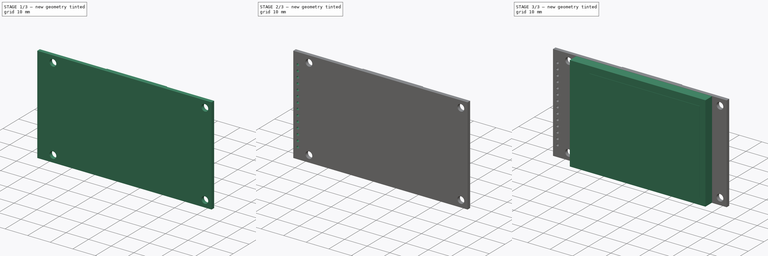
[diagram: build sequence overview — one tinted view per stage of 3, left to right]
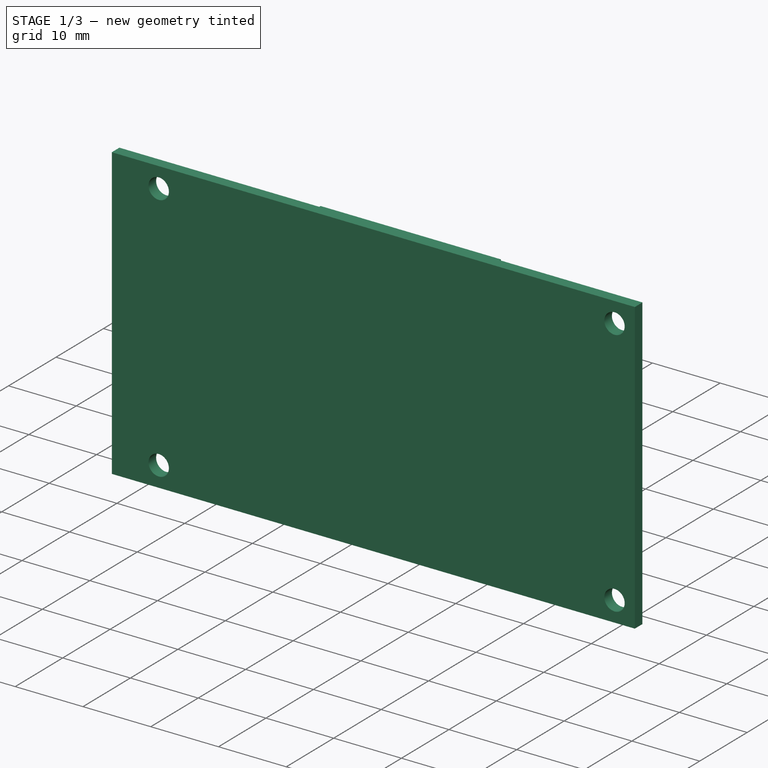
[diagram: stage 1 of 3 — iso view after this stage's code; geometry added in this stage tinted green]
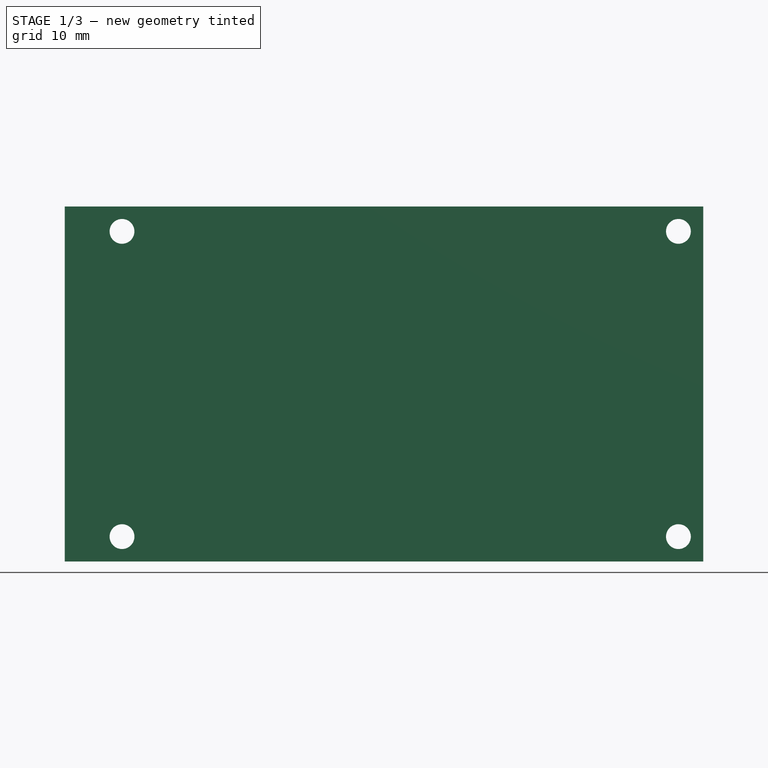
[diagram: stage 1 of 3 — front view after this stage's code; geometry added in this stage tinted green]
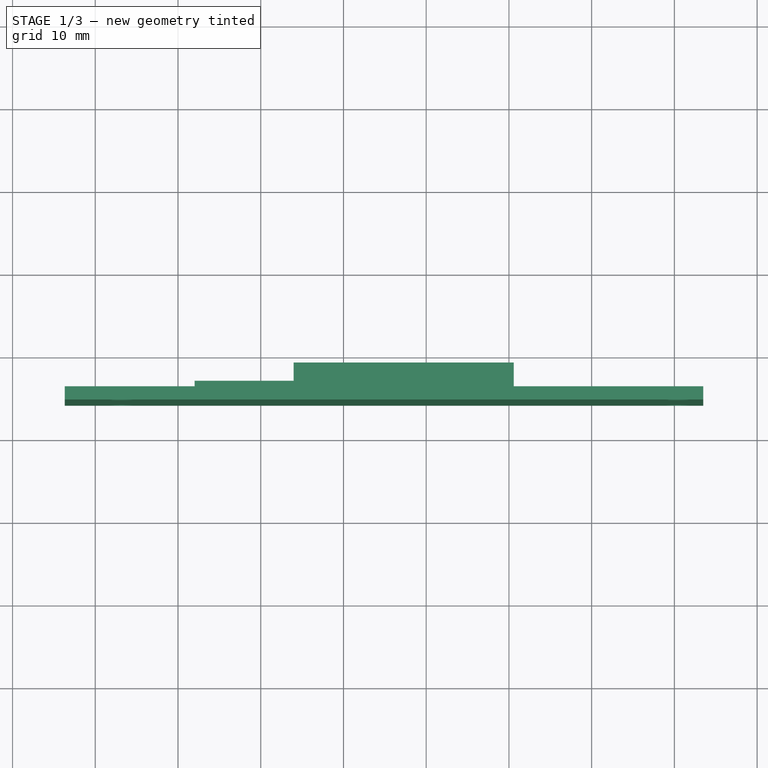
[diagram: stage 1 of 3 — top view after this stage's code; geometry added in this stage tinted green]
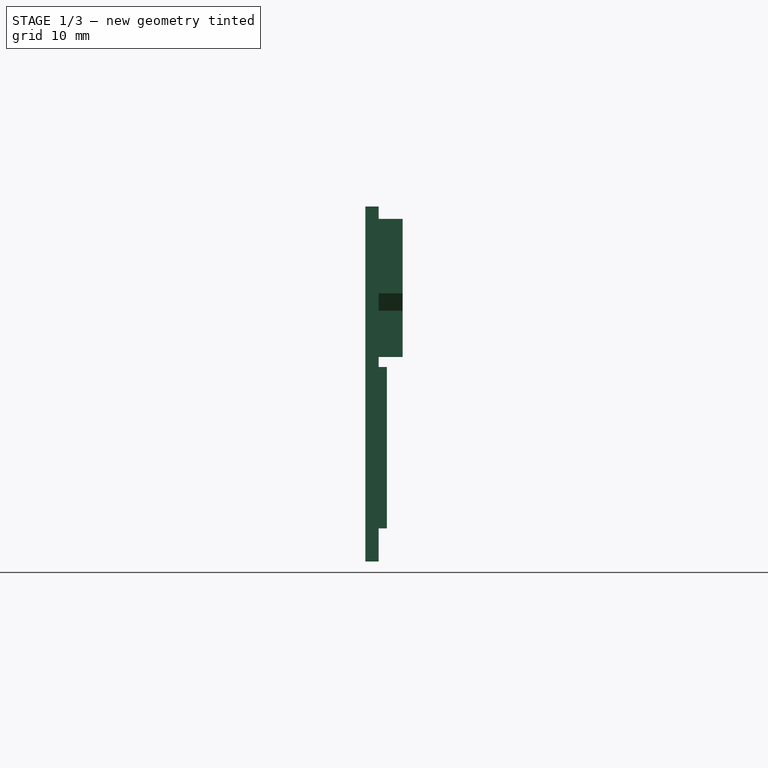
[diagram: stage 1 of 3 — right view after this stage's code; geometry added in this stage tinted green]
FCSTD DOCUMENT  (FreeCAD 0.19R24276 (Git))
Label: Display 2.4'' 320x240
License: All rights reserved
LicenseURL: http://en.wikipedia.org/wiki/All_rights_reserved
objects: Sketcher::SketchObject×9, PartDesign::Pad×5, PartDesign::Body×4, PartDesign::Pocket×1, PartDesign::LinearPattern×1, Part::Compound×1
note: 27 computed .brp shape members not serialized (recipe doc carries the construction recipe); baked Part::Feature solids carry a one-line shape summary decoded from their .brp

FEATURE [PartDesign::Body] Body  label="Glass"
  Group = -> [Sketch,Pad,Sketch001,Pad001]
  Origin = -> Origin
  Tip = -> Pad001
FEATURE [Sketcher::SketchObject] Sketch003  label="pc skeleton"
  FullyConstrained = true
  MapMode = 5
  Placement = pos=(0,0,0) rot=(1,0,0;1.5708rad)
  Support = -> [XZ_Plane001]
  sketch-geometry (8):
    g0: LineSegment StartX=-33.28 StartY=21.36 StartZ=0 EndX=26.98 EndY=21.36 EndZ=0
    g1: LineSegment StartX=26.98 StartY=21.36 StartZ=0 EndX=26.98 EndY=-21.36 EndZ=0
    g2: LineSegment StartX=26.98 StartY=-21.36 StartZ=0 EndX=-33.28 EndY=-21.36 EndZ=0
    g3: LineSegment StartX=-33.28 StartY=-21.36 StartZ=0 EndX=-33.28 EndY=21.36 EndZ=0
    g4: LineSegment StartX=-24.48 StartY=18.36 StartZ=0 EndX=24.48 EndY=18.36 EndZ=0
    g5: LineSegment StartX=24.48 StartY=18.36 StartZ=0 EndX=24.48 EndY=-18.36 EndZ=0
    g6: LineSegment StartX=24.48 StartY=-18.36 StartZ=0 EndX=-24.48 EndY=-18.36 EndZ=0
    g7: LineSegment StartX=-24.48 StartY=-18.36 StartZ=0 EndX=-24.48 EndY=18.36 EndZ=0
  constraints (21):
    c: Coincident(g0,g1)
    c: Coincident(g1,g2)
    c: Coincident(g2,g3)
    c: Coincident(g3,g0)
    c: Horizontal(g2)
    c: Vertical(g3)
    c: DistanceX(g0,g0) = 60.26
    c: DistanceY(g1,g1) = 42.72
    c: Coincident(g4,g5)
    c: Coincident(g5,g6)
    c: Coincident(g6,g7)
    c: Coincident(g7,g4)
    c: Horizontal(g6)
    c: Vertical(g7)
    c: Horizontal(g0)
    c: Symmetric(g4,g4,g-2)
    c: Symmetric(g4,g5,g-1)
    c: DistanceX(g4,g4) = 48.96
    c: DistanceX(g4,g0) = 2.5
    c: DistanceY(g5,g5) = 36.72
    c: Symmetric(g0,g1,g-1)
FEATURE [Sketcher::SketchObject] Sketch002  label="pc base"
  AttachmentOffset = pos=(0,0,-4.2) rot=(0,0,1;0rad)
  ExternalGeometry = -> [Sketch003]
  FullyConstrained = true
  MapMode = 5
  Placement = pos=(0,4.2,9e-16) rot=(1,0,0;1.5708rad)
  Support = -> [XZ_Plane001]
  sketch-geometry (12):
    g0: LineSegment StartX=33.49 StartY=21.45 StartZ=0 EndX=-43.69 EndY=21.45 EndZ=0
    g1: LineSegment StartX=-43.69 StartY=21.45 StartZ=0 EndX=-43.69 EndY=-21.45 EndZ=0
    g2: LineSegment StartX=-43.69 StartY=-21.45 StartZ=0 EndX=33.49 EndY=-21.45 EndZ=0
    g3: LineSegment StartX=33.49 StartY=-21.45 StartZ=0 EndX=33.49 EndY=21.45 EndZ=0
    g4: LineSegment StartX=-36.77 StartY=18.45 StartZ=0 EndX=30.49 EndY=18.45 EndZ=0
    g5: LineSegment StartX=30.49 StartY=18.45 StartZ=0 EndX=30.49 EndY=-18.45 EndZ=0
    g6: LineSegment StartX=30.49 StartY=-18.45 StartZ=0 EndX=-36.77 EndY=-18.45 EndZ=0
    g7: LineSegment StartX=-36.77 StartY=-18.45 StartZ=0 EndX=-36.77 EndY=18.45 EndZ=0
    g8: Circle CenterX=30.49 CenterY=18.45 CenterZ=0 NormalX=0 NormalY=0 NormalZ=1 AngleXU=0 Radius=1.5
    g9: Circle CenterX=30.49 CenterY=-18.45 CenterZ=0 NormalX=0 NormalY=0 NormalZ=1 AngleXU=0 Radius=1.5
    g10: Circle CenterX=-36.77 CenterY=-18.45 CenterZ=0 NormalX=0 NormalY=0 NormalZ=1 AngleXU=0 Radius=1.5
    g11: Circle CenterX=-36.77 CenterY=18.45 CenterZ=0 NormalX=0 NormalY=0 NormalZ=1 AngleXU=0 Radius=1.5
  constraints (30):
    c: Coincident(g0,g1)
    c: Coincident(g1,g2)
    c: Coincident(g2,g3)
    c: Coincident(g3,g0)
    c: Horizontal(g0)
    c: Horizontal(g2)
    c: Vertical(g1)
    c: Symmetric(g0,g2,g-1)
    c: DistanceX(g0,g-3) = 10.41
    c: DistanceX(g0,g0) = 77.18
    c: DistanceY(g3,g3) = 42.9
    c: Coincident(g4,g5)
    c: Coincident(g5,g6)
    c: Coincident(g6,g7)
    c: Coincident(g7,g4)
    c: Horizontal(g4)
    c: Horizontal(g6)
    c: Vertical(g7)
    c: Symmetric(g4,g5,g-1)
    c: Coincident(g8,g4)
    c: Coincident(g9,g5)
    c: Coincident(g10,g6)
    c: Coincident(g11,g4)
    c: Equal(g8,g11)
    c: Equal(g11,g10)
    c: Equal(g10,g9)
    c: Radius(g9) = 1.5
    c: DistanceX(g0,g11) = 6.92
    c: DistanceX(g8,g0) = 3
    c: DistanceY(g8,g0) = 3
FEATURE [PartDesign::Pad] Pad002  label="PC base"
  Direction = (1,1,1)
  Length = 1.6
  Length2 = 100
  Placement = pos=(0,0,0) rot=(1,0,0;1.5708rad)
  Profile = -> Sketch002
  Reversed = true
  Type = 0
FEATURE [PartDesign::Body] Body001  label="PCB"
  Group = -> [Sketch002,Sketch003,Pad002,Sketch004,Pocket,LinearPattern]
  Origin = -> Origin001
  Tip = -> LinearPattern
FEATURE [Sketcher::SketchObject] Sketch006  label="sd skeleton"
  FullyConstrained = true
  MapMode = 5
  Placement = pos=(0,0,0) rot=(1,0,0;1.5708rad)
  Support = -> [XZ_Plane002]
  sketch-geometry (8):
    g0: LineSegment StartX=-33.28 StartY=21.36 StartZ=0 EndX=26.98 EndY=21.36 EndZ=0
    g1: LineSegment StartX=26.98 StartY=21.36 StartZ=0 EndX=26.98 EndY=-21.36 EndZ=0
    g2: LineSegment StartX=26.98 StartY=-21.36 StartZ=0 EndX=-33.28 EndY=-21.36 EndZ=0
    g3: LineSegment StartX=-33.28 StartY=-21.36 StartZ=0 EndX=-33.28 EndY=21.36 EndZ=0
    g4: LineSegment StartX=-24.48 StartY=18.36 StartZ=0 EndX=24.48 EndY=18.36 EndZ=0
    g5: LineSegment StartX=24.48 StartY=18.36 StartZ=0 EndX=24.48 EndY=-18.36 EndZ=0
    g6: LineSegment StartX=24.48 StartY=-18.36 StartZ=0 EndX=-24.48 EndY=-18.36 EndZ=0
    g7: LineSegment StartX=-24.48 StartY=-18.36 StartZ=0 EndX=-24.48 EndY=18.36 EndZ=0
  constraints (21):
    c: Coincident(g0,g1)
    c: Coincident(g1,g2)
    c: Coincident(g2,g3)
    c: Coincident(g3,g0)
    c: Horizontal(g2)
    c: Vertical(g3)
    c: DistanceX(g0,g0) = 60.26
    c: DistanceY(g1,g1) = 42.72
    c: Coincident(g4,g5)
    c: Coincident(g5,g6)
    c: Coincident(g6,g7)
    c: Coincident(g7,g4)
    c: Horizontal(g6)
    c: Vertical(g7)
    c: Horizontal(g0)
    c: Symmetric(g4,g4,g-2)
    c: Symmetric(g4,g5,g-1)
    c: DistanceX(g4,g4) = 48.96
    c: DistanceX(g4,g0) = 2.5
    c: DistanceY(g5,g5) = 36.72
    c: Symmetric(g0,g1,g-1)
FEATURE [Sketcher::SketchObject] Sketch005  label="sd base"
  AttachmentOffset = pos=(0,0,-5.8) rot=(0,0,1;0rad)
  ExternalGeometry = -> [Sketch006]
  FullyConstrained = true
  MapMode = 5
  Placement = pos=(0,5.8,1.3e-15) rot=(1,0,0;1.5708rad)
  Support = -> [XZ_Plane002]
  sketch-geometry (6):
    g0: LineSegment StartX=-16.02 StartY=19.96 StartZ=0 EndX=10.58 EndY=19.96 EndZ=0
    g1: LineSegment StartX=10.58 StartY=19.96 StartZ=0 EndX=10.58 EndY=10.96 EndZ=0
    g2: LineSegment StartX=8.48 StartY=3.26 StartZ=0 EndX=-16.02 EndY=3.26 EndZ=0
    g3: LineSegment StartX=-16.02 StartY=3.26 StartZ=0 EndX=-16.02 EndY=19.96 EndZ=0
    g4: LineSegment StartX=10.58 StartY=10.96 StartZ=0 EndX=8.48 EndY=8.86 EndZ=0
    g5: LineSegment StartX=8.48 StartY=8.86 StartZ=0 EndX=8.48 EndY=3.26 EndZ=0
  constraints (18):
    c: Coincident(g0,g1)
    c: Coincident(g2,g3)
    c: Coincident(g3,g0)
    c: Horizontal(g0)
    c: Horizontal(g2)
    c: Vertical(g1)
    c: Vertical(g3)
    c: DistanceX(g0,g-3) = 16.4
    c: DistanceX(g0,g0) = 26.6
    c: DistanceY(g0,g-3) = 1.4
    c: Coincident(g4,g5)
    c: Vertical(g5)
    c: Coincident(g2,g5)
    c: Coincident(g4,g1)
    c: DistanceY(g2,g0) = 16.7
    c: DistanceX(g2,g2) = 24.5
    c: DistanceY(g5,g5) = 5.6
    c: Angle(g5,g4) = 2.35619
FEATURE [PartDesign::Pad] Pad003  label="SD Base"
  Direction = (1,1,1)
  Length = 2.9
  Length2 = 100
  Placement = pos=(0,0,0) rot=(1,0,0;1.5708rad)
  Profile = -> Sketch005
  Reversed = true
  Type = 0
FEATURE [PartDesign::Body] Body002  label="SD Card Slot"
  Group = -> [Sketch005,Sketch006,Pad003]
  Origin = -> Origin002
  Tip = -> Pad003
FEATURE [Sketcher::SketchObject] Sketch009  label="cm skeleton"
  AttachmentOffset = pos=(0,0,-4.2) rot=(0,0,1;0rad)
  ExternalGeometry = -> [Sketch003]
  FullyConstrained = true
  MapMode = 5
  Placement = pos=(0,4.2,9e-16) rot=(1,0,0;1.5708rad)
  Support = -> [XZ_Plane003]
  sketch-geometry (12):
    g0: LineSegment StartX=33.49 StartY=21.45 StartZ=0 EndX=-43.69 EndY=21.45 EndZ=0
    g1: LineSegment StartX=-43.69 StartY=21.45 StartZ=0 EndX=-43.69 EndY=-21.45 EndZ=0
    g2: LineSegment StartX=-43.69 StartY=-21.45 StartZ=0 EndX=33.49 EndY=-21.45 EndZ=0
    g3: LineSegment StartX=33.49 StartY=-21.45 StartZ=0 EndX=33.49 EndY=21.45 EndZ=0
    g4: LineSegment StartX=-36.77 StartY=18.45 StartZ=0 EndX=30.49 EndY=18.45 EndZ=0
    g5: LineSegment StartX=30.49 StartY=18.45 StartZ=0 EndX=30.49 EndY=-18.45 EndZ=0
    g6: LineSegment StartX=30.49 StartY=-18.45 StartZ=0 EndX=-36.77 EndY=-18.45 EndZ=0
    g7: LineSegment StartX=-36.77 StartY=-18.45 StartZ=0 EndX=-36.77 EndY=18.45 EndZ=0
    g8: Circle CenterX=30.49 CenterY=18.45 CenterZ=0 NormalX=0 NormalY=0 NormalZ=1 AngleXU=0 Radius=1.5
    g9: Circle CenterX=30.49 CenterY=-18.45 CenterZ=0 NormalX=0 NormalY=0 NormalZ=1 AngleXU=0 Radius=1.5
    g10: Circle CenterX=-36.77 CenterY=-18.45 CenterZ=0 NormalX=0 NormalY=0 NormalZ=1 AngleXU=0 Radius=1.5
    g11: Circle CenterX=-36.77 CenterY=18.45 CenterZ=0 NormalX=0 NormalY=0 NormalZ=1 AngleXU=0 Radius=1.5
  constraints (30):
    c: Coincident(g0,g1)
    c: Coincident(g1,g2)
    c: Coincident(g2,g3)
    c: Coincident(g3,g0)
    c: Horizontal(g0)
    c: Horizontal(g2)
    c: Vertical(g1)
    c: Symmetric(g0,g2,g-1)
    c: DistanceX(g0,g-3) = 10.41
    c: DistanceX(g0,g0) = 77.18
    c: DistanceY(g3,g3) = 42.9
    c: Coincident(g4,g5)
    c: Coincident(g5,g6)
    c: Coincident(g6,g7)
    c: Coincident(g7,g4)
    c: Horizontal(g4)
    c: Horizontal(g6)
    c: Vertical(g7)
    c: Symmetric(g4,g5,g-1)
    c: Coincident(g8,g4)
    c: Coincident(g9,g5)
    c: Coincident(g10,g6)
    c: Coincident(g11,g4)
    c: Equal(g8,g11)
    c: Equal(g11,g10)
    c: Equal(g10,g9)
    c: Radius(g9) = 1.5
    c: DistanceX(g0,g11) = 6.92
    c: DistanceX(g8,g0) = 3
    c: DistanceY(g8,g0) = 3
FEATURE [Sketcher::SketchObject] Sketch010  label="cm components"
  AttachmentOffset = pos=(0,0,-5.8) rot=(0,0,1;0rad)
  ExternalGeometry = -> [Sketch009]
  FullyConstrained = true
  MapMode = 5
  Placement = pos=(0,5.8,1.3e-15) rot=(1,0,0;1.5708rad)
  Support = -> [XZ_Plane003]
  sketch-geometry (4):
    g0: LineSegment StartX=-27.99 StartY=2.05 StartZ=0 EndX=6.01 EndY=2.05 EndZ=0
    g1: LineSegment StartX=6.01 StartY=2.05 StartZ=0 EndX=6.01 EndY=-17.45 EndZ=0
    g2: LineSegment StartX=6.01 StartY=-17.45 StartZ=0 EndX=-27.99 EndY=-17.45 EndZ=0
    g3: LineSegment StartX=-27.99 StartY=-17.45 StartZ=0 EndX=-27.99 EndY=2.05 EndZ=0
  constraints (12):
    c: Coincident(g0,g1)
    c: Coincident(g1,g2)
    c: Coincident(g2,g3)
    c: Coincident(g3,g0)
    c: Horizontal(g0)
    c: Horizontal(g2)
    c: Vertical(g1)
    c: Vertical(g3)
    c: DistanceX(g-3,g2) = 15.7
    c: DistanceX(g0,g0) = 34
    c: DistanceY(g-3,g2) = 4
    c: DistanceY(g1,g1) = 19.5
FEATURE [PartDesign::Pad] Pad004
  Direction = (1,1,1)
  Length = 1
  Length2 = 100
  Placement = pos=(0,0,0) rot=(1,0,0;1.5708rad)
  Profile = -> Sketch010
  Reversed = true
  Type = 0
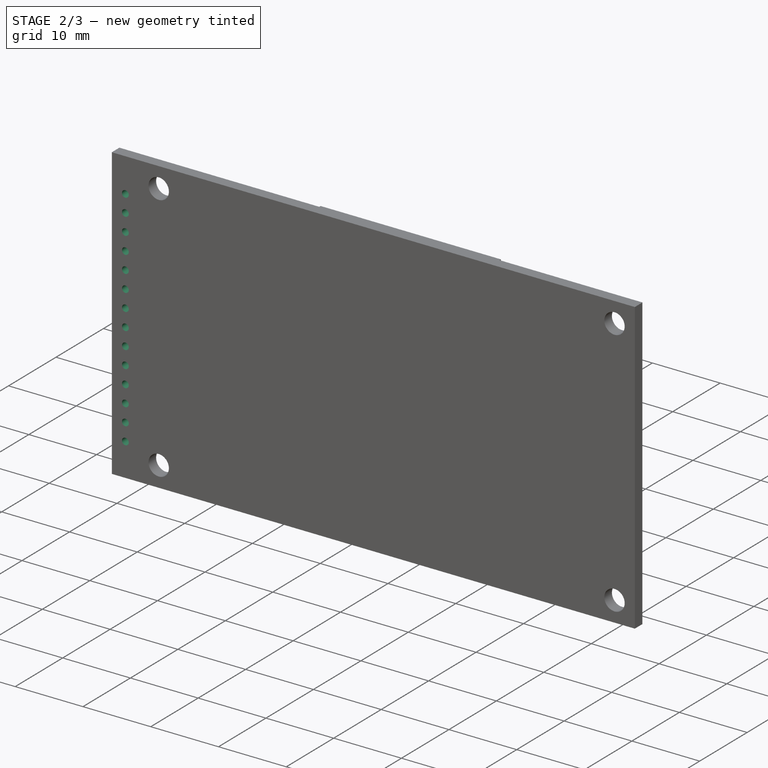
[diagram: stage 2 of 3 — iso view after this stage's code; geometry added in this stage tinted green]
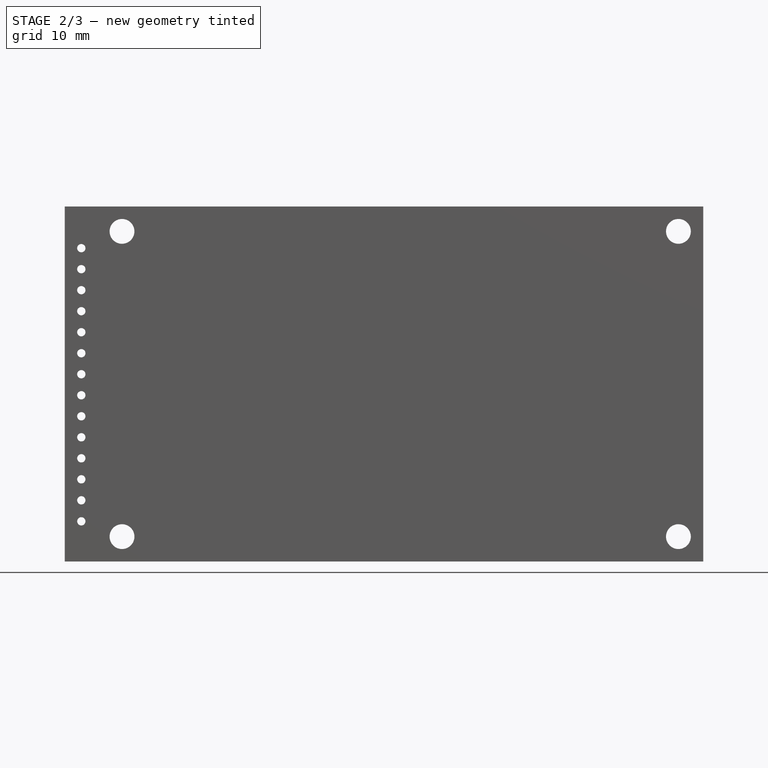
[diagram: stage 2 of 3 — front view after this stage's code; geometry added in this stage tinted green]
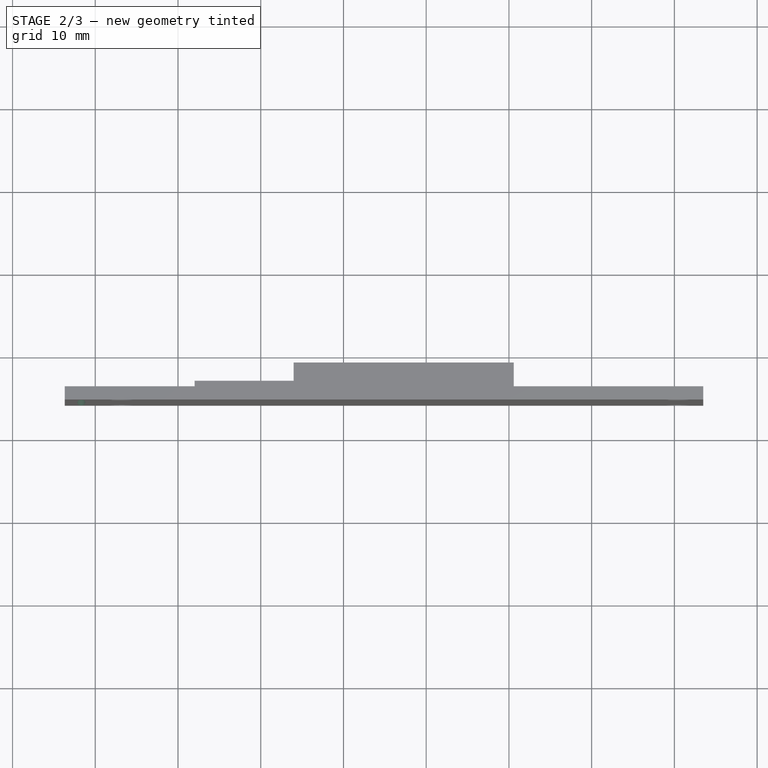
[diagram: stage 2 of 3 — top view after this stage's code; geometry added in this stage tinted green]
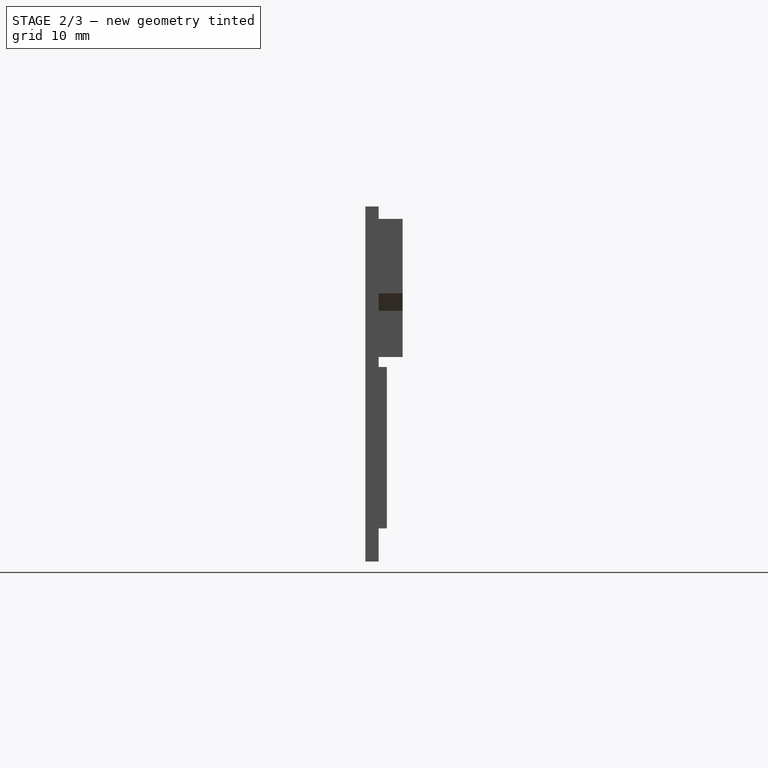
[diagram: stage 2 of 3 — right view after this stage's code; geometry added in this stage tinted green]
FEATURE [Sketcher::SketchObject] Sketch004  label="pc hole"
  ExternalGeometry = -> [Sketch002]
  FullyConstrained = true
  MapMode = 5
  Placement = pos=(0,0,0) rot=(1,0,0;1.5708rad)
  Support = -> [XZ_Plane001]
  sketch-geometry (1):
    g0: Circle CenterX=-41.69 CenterY=-16.6 CenterZ=0 NormalX=0 NormalY=0 NormalZ=1 AngleXU=0 Radius=0.5
  constraints (3):
    c: DistanceX(g-3,g0) = 2
    c: DistanceY(g-3,g0) = 4.85
    c: Radius(g0) = 0.5
FEATURE [PartDesign::Pocket] Pocket  label="PC FirstHole"
  BaseFeature = -> Pad002
  Length = 5
  Length2 = 100
  Midplane = true
  Placement = pos=(0,0,0) rot=(1,0,0;1.5708rad)
  Profile = -> Sketch004
  Type = 1
FEATURE [PartDesign::LinearPattern] LinearPattern  label="PC OtherHoles"
  BaseFeature = -> Pocket
  Direction = -> Z_Axis001
  Length = 33.02
  Occurrences = 14
  Originals = -> [Pocket]
  Placement = pos=(0,0,0) rot=(1,0,0;1.5708rad)
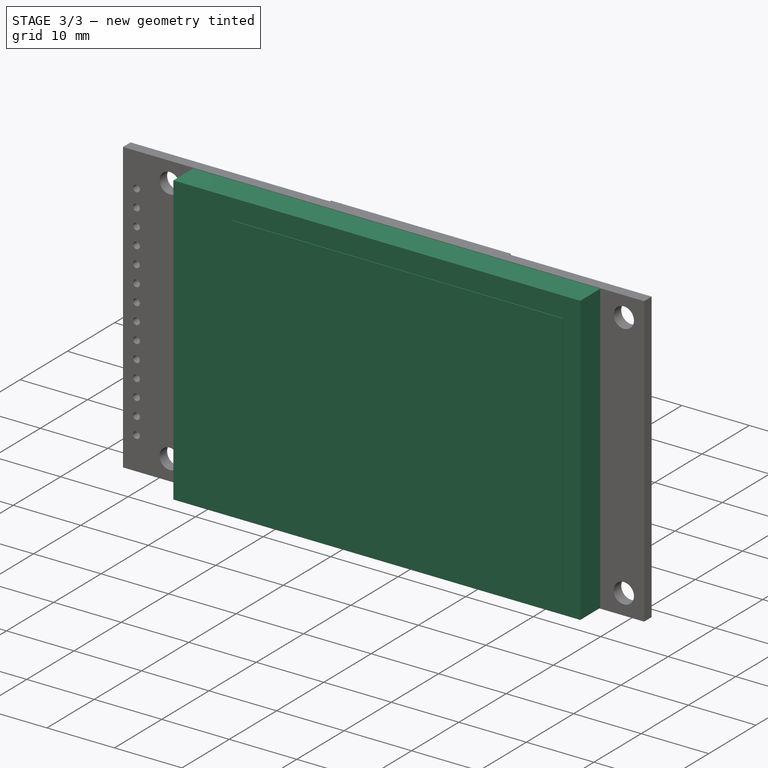
[diagram: stage 3 of 3 — iso view after this stage's code; geometry added in this stage tinted green]
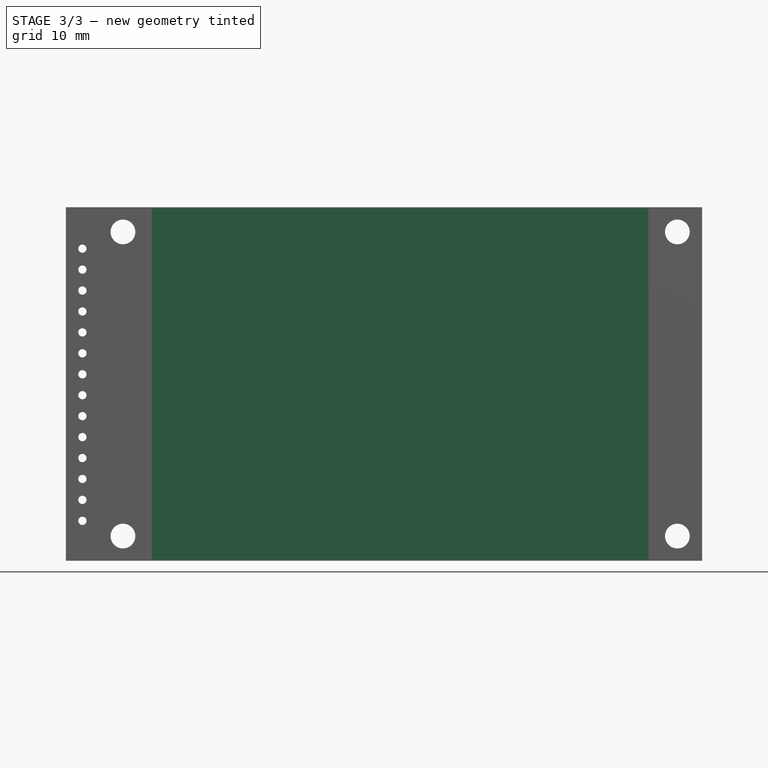
[diagram: stage 3 of 3 — front view after this stage's code; geometry added in this stage tinted green]
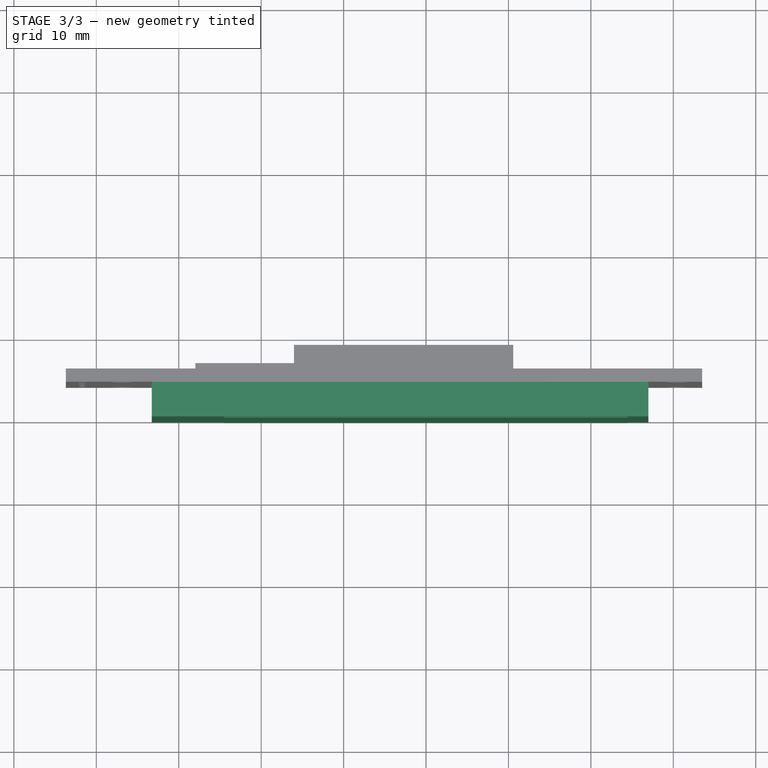
[diagram: stage 3 of 3 — top view after this stage's code; geometry added in this stage tinted green]
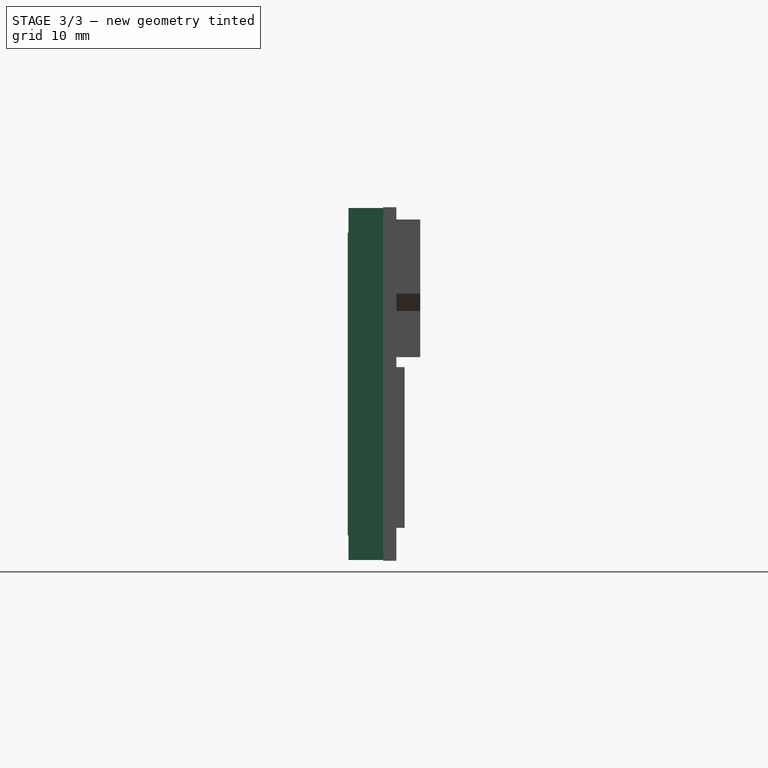
[diagram: stage 3 of 3 — right view after this stage's code; geometry added in this stage tinted green]
FEATURE [Sketcher::SketchObject] Sketch  label="gl base"
  FullyConstrained = true
  MapMode = 5
  Placement = pos=(0,0,0) rot=(1,0,0;1.5708rad)
  Support = -> [XZ_Plane]
  sketch-geometry (8):
    g0: LineSegment StartX=-33.28 StartY=21.36 StartZ=0 EndX=26.98 EndY=21.36 EndZ=0
    g1: LineSegment StartX=26.98 StartY=21.36 StartZ=0 EndX=26.98 EndY=-21.36 EndZ=0
    g2: LineSegment StartX=26.98 StartY=-21.36 StartZ=0 EndX=-33.28 EndY=-21.36 EndZ=0
    g3: LineSegment StartX=-33.28 StartY=-21.36 StartZ=0 EndX=-33.28 EndY=21.36 EndZ=0
    g4: LineSegment StartX=-24.48 StartY=18.36 StartZ=0 EndX=24.48 EndY=18.36 EndZ=0
    g5: LineSegment StartX=24.48 StartY=18.36 StartZ=0 EndX=24.48 EndY=-18.36 EndZ=0
    g6: LineSegment StartX=24.48 StartY=-18.36 StartZ=0 EndX=-24.48 EndY=-18.36 EndZ=0
    g7: LineSegment StartX=-24.48 StartY=-18.36 StartZ=0 EndX=-24.48 EndY=18.36 EndZ=0
  constraints (21):
    c: Coincident(g0,g1)
    c: Coincident(g1,g2)
    c: Coincident(g2,g3)
    c: Coincident(g3,g0)
    c: Horizontal(g2)
    c: Vertical(g3)
    c: DistanceX(g0,g0) = 60.26
    c: DistanceY(g1,g1) = 42.72
    c: Coincident(g4,g5)
    c: Coincident(g5,g6)
    c: Coincident(g6,g7)
    c: Coincident(g7,g4)
    c: Horizontal(g6)
    c: Vertical(g7)
    c: Horizontal(g0)
    c: Symmetric(g4,g4,g-2)
    c: Symmetric(g4,g5,g-1)
    c: DistanceX(g4,g4) = 48.96
    c: DistanceX(g4,g0) = 2.5
    c: DistanceY(g5,g5) = 36.72
    c: Symmetric(g0,g1,g-1)
FEATURE [PartDesign::Pad] Pad  label="GL Base"
  Direction = (1,1,1)
  Length = 4.2
  Length2 = 100
  Placement = pos=(0,0,0) rot=(1,0,0;1.5708rad)
  Profile = -> Sketch
  Reversed = true
  Type = 0
FEATURE [Sketcher::SketchObject] Sketch001  label="gl active area"
  FullyConstrained = true
  MapMode = 5
  Placement = pos=(0,0,0) rot=(1,0,0;1.5708rad)
  Support = -> [XZ_Plane]
  sketch-geometry (4):
    g0: LineSegment StartX=-24.48 StartY=18.36 StartZ=0 EndX=24.48 EndY=18.36 EndZ=0
    g1: LineSegment StartX=24.48 StartY=18.36 StartZ=0 EndX=24.48 EndY=-18.36 EndZ=0
    g2: LineSegment StartX=24.48 StartY=-18.36 StartZ=0 EndX=-24.48 EndY=-18.36 EndZ=0
    g3: LineSegment StartX=-24.48 StartY=-18.36 StartZ=0 EndX=-24.48 EndY=18.36 EndZ=0
  constraints (10):
    c: Coincident(g0,g1)
    c: Coincident(g1,g2)
    c: Coincident(g2,g3)
    c: Coincident(g3,g0)
    c: Horizontal(g2)
    c: Vertical(g3)
    c: Symmetric(g0,g0,g-2)
    c: Symmetric(g0,g1,g-1)
    c: DistanceY(g1,g1) = 36.72
    c: DistanceX(g0,g0) = 48.96
FEATURE [PartDesign::Pad] Pad001  label="GL active area"
  BaseFeature = -> Pad
  Direction = (1,1,1)
  Length = 0.1
  Length2 = 100
  Placement = pos=(0,0,0) rot=(1,0,0;1.5708rad)
  Profile = -> Sketch001
  Type = 0
FEATURE [PartDesign::Body] Body003  label="Components"
  Group = -> [Sketch009,Sketch010,Pad004]
  Origin = -> Origin003
  Tip = -> Pad004
FEATURE [Part::Compound] Compound  label="Display"
  Links = -> [Body,Body001,Body002,Body003]
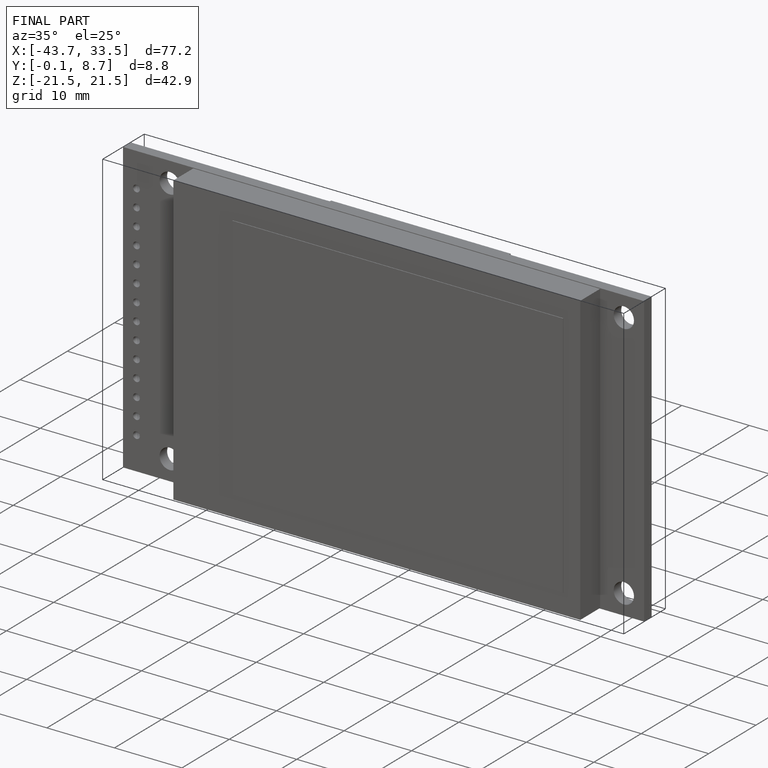
[diagram: finished part — iso view with bounding-box wireframe]
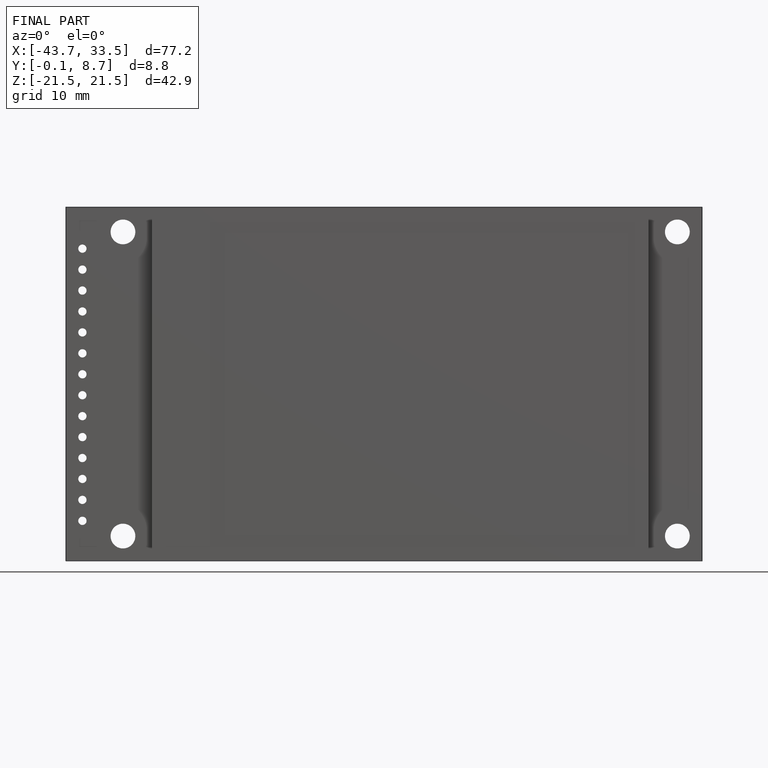
[diagram: finished part — front view with bounding-box wireframe]
